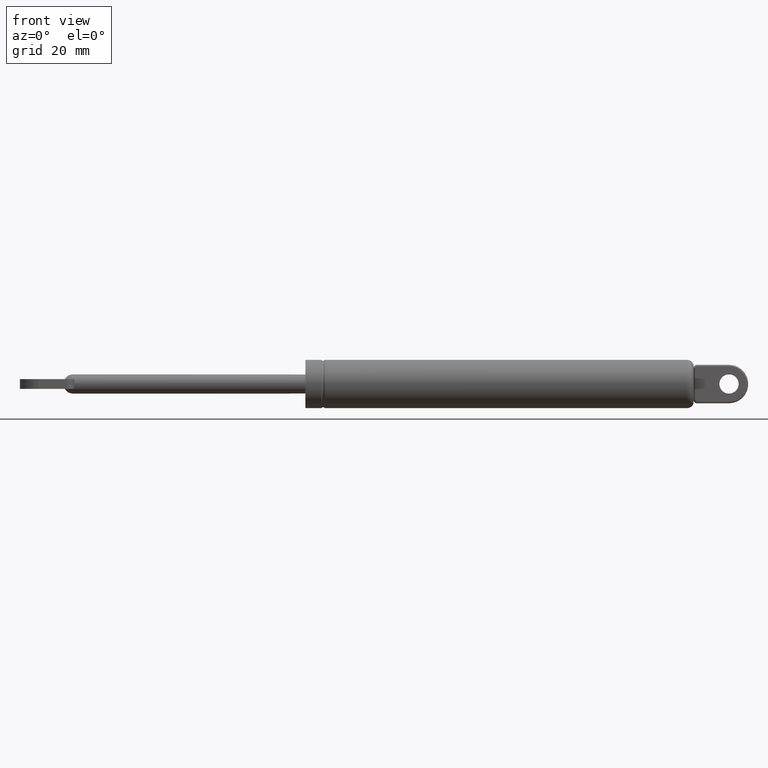
[diagram: clean part render]
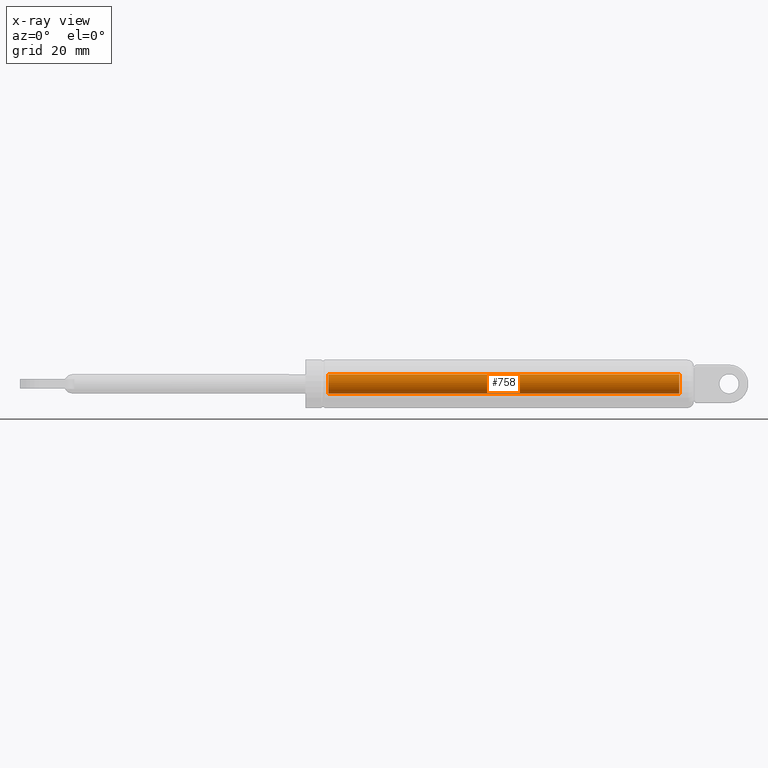
[diagram: x-ray — body ghosted, one internal face saturated and labeled with its STEP entity id]
A machine part, front view, then the same camera in x-ray: the body is ghosted and one INTERNAL B-rep face — a face not visible from any outside direction — is saturated and labeled: STEP entity #758.
In plain terms, the highlighted cylindrical surface (bore or boss wall) has radius 3 mm, axis along (-1, 0, 0).
Its self-contained STEP definition (entity closure, byte-faithful):
#151=FACE_BOUND('',#224,.T.);
#170=FACE_OUTER_BOUND('',#223,.T.);
#223=EDGE_LOOP('',(#527));
#224=EDGE_LOOP('',(#528));
#295=CIRCLE('',#816,3.00000000000001);
#296=CIRCLE('',#817,3.00000000000001);
#351=VERTEX_POINT('',#1182);
#352=VERTEX_POINT('',#1184);
#423=EDGE_CURVE('',#351,#351,#295,.T.);
#424=EDGE_CURVE('',#352,#352,#296,.T.);
#527=ORIENTED_EDGE('',*,*,#423,.T.);
#528=ORIENTED_EDGE('',*,*,#424,.T.);
#735=CYLINDRICAL_SURFACE('',#815,3.00000000000001);
#758=ADVANCED_FACE('',(#170,#151),#735,.F.);
#815=AXIS2_PLACEMENT_3D('',#1181,#924,#925);
#816=AXIS2_PLACEMENT_3D('',#1183,#926,#927);
#817=AXIS2_PLACEMENT_3D('',#1185,#928,#929);
#924=DIRECTION('center_axis',(-1.,0.,1.23867858119336E-16));
#925=DIRECTION('ref_axis',(1.23867858119336E-16,0.,1.));
#926=DIRECTION('center_axis',(-1.,0.,1.23867858119336E-16));
#927=DIRECTION('ref_axis',(1.23867858119336E-16,0.,1.));
#928=DIRECTION('center_axis',(1.,0.,-1.23867858119336E-16));
#929=DIRECTION('ref_axis',(1.23867858119336E-16,0.,1.));
#1181=CARTESIAN_POINT('Origin',(63.5,0.,-7.86560899057781E-15));
#1182=CARTESIAN_POINT('',(7.12823679770738,-3.67394039744207E-16,-3.00000000000001));
#1183=CARTESIAN_POINT('Origin',(7.12823679770738,0.,-8.82959424299445E-16));
#1184=CARTESIAN_POINT('',(116.5,3.67394039744207E-16,-3.00000000000002));
#1185=CARTESIAN_POINT('Origin',(116.5,0.,-1.44306054709026E-14));